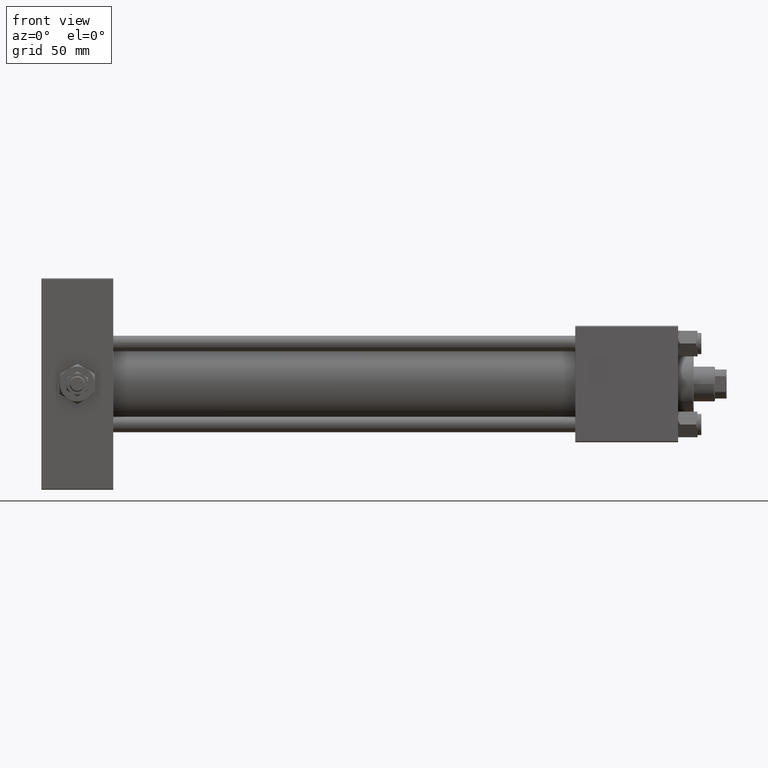
[diagram: clean part render]
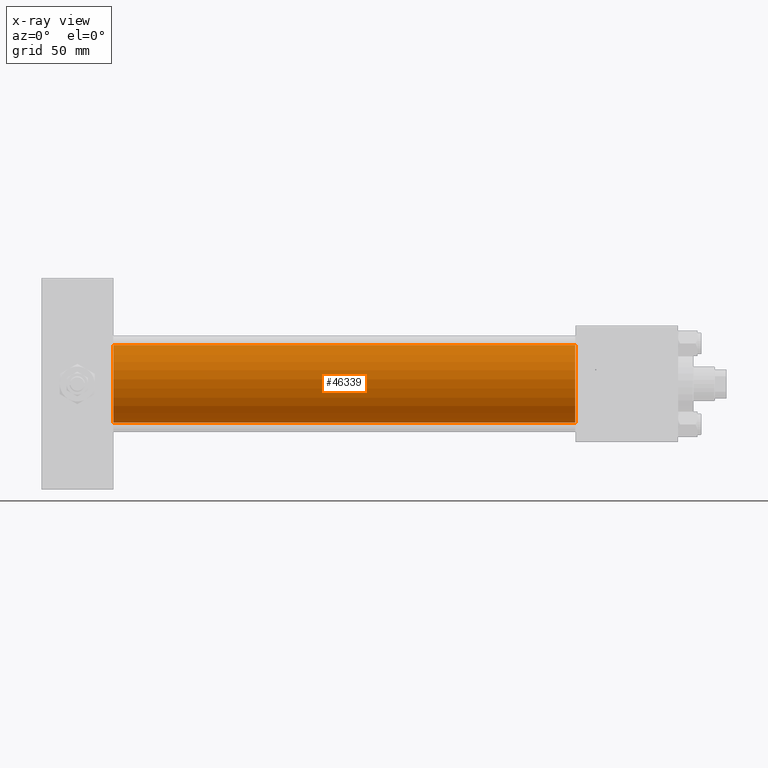
[diagram: x-ray — body ghosted, one internal face saturated and labeled with its STEP entity id]
A machine part, front view, then the same camera in x-ray: the body is ghosted and one INTERNAL B-rep face — a face not visible from any outside direction — is saturated and labeled: STEP entity #46339.
In plain terms, the highlighted cylindrical surface (partial cylindrical patch) has radius 20 mm, axis along (-1, -0, -0).
Its self-contained STEP definition (entity closure, byte-faithful):
#6303 = CARTESIAN_POINT ( 'NONE',  ( 274.9999999999999432, -2.602085213965210642E-15, 0.000000000000000000 ) ) ;
#6581 = DIRECTION ( 'NONE',  ( -1.000000000000000000, -0.000000000000000000, -0.000000000000000000 ) ) ;
#7048 = DIRECTION ( 'NONE',  ( 0.000000000000000000, 0.000000000000000000, -1.000000000000000000 ) ) ;
#11314 = AXIS2_PLACEMENT_3D ( 'NONE', #51269, #42913, #7048 ) ;
#11513 = VERTEX_POINT ( 'NONE', #28851 ) ;
#14924 = VERTEX_POINT ( 'NONE', #17697 ) ;
#15507 = AXIS2_PLACEMENT_3D ( 'NONE', #28723, #31889, #24548 ) ;
#15607 = EDGE_CURVE ( 'NONE', #14924, #32264, #33076, .T. ) ;
#15645 = EDGE_LOOP ( 'NONE', ( #50236, #17082, #39259, #16902 ) ) ;
#16421 = EDGE_CURVE ( 'NONE', #25522, #11513, #33897, .T. ) ;
#16627 = VECTOR ( 'NONE', #23843, 1000.000000000000000 ) ;
#16902 = ORIENTED_EDGE ( 'NONE', *, *, #31165, .F. ) ;
#17082 = ORIENTED_EDGE ( 'NONE', *, *, #27959, .T. ) ;
#17697 = CARTESIAN_POINT ( 'NONE',  ( 37.00000000000000000, -2.602085213965210642E-15, 20.00000000000000000 ) ) ;
#20169 = CARTESIAN_POINT ( 'NONE',  ( 274.9999999999999432, -1.527916156705042519E-16, -20.00000000000000000 ) ) ;
#20972 = CARTESIAN_POINT ( 'NONE',  ( 37.00000000000000000, -1.527916156705042519E-16, -20.00000000000000000 ) ) ;
#21236 = VECTOR ( 'NONE', #49258, 1000.000000000000000 ) ;
#22279 = DIRECTION ( 'NONE',  ( 0.000000000000000000, 0.000000000000000000, 1.000000000000000000 ) ) ;
#23843 = DIRECTION ( 'NONE',  ( -1.000000000000000000, -0.000000000000000000, -0.000000000000000000 ) ) ;
#24548 = DIRECTION ( 'NONE',  ( 0.000000000000000000, 0.000000000000000000, -1.000000000000000000 ) ) ;
#25522 = VERTEX_POINT ( 'NONE', #39306 ) ;
#27510 = AXIS2_PLACEMENT_3D ( 'NONE', #6303, #6581, #22279 ) ;
#27959 = EDGE_CURVE ( 'NONE', #11513, #32264, #40589, .T. ) ;
#28723 = CARTESIAN_POINT ( 'NONE',  ( 37.00000000000000000, -2.602085213965210642E-15, 0.000000000000000000 ) ) ;
#28846 = CARTESIAN_POINT ( 'NONE',  ( 274.9999999999999432, -2.602085213965210642E-15, 20.00000000000000000 ) ) ;
#28851 = CARTESIAN_POINT ( 'NONE',  ( 274.9999999999999432, -1.527916156705042519E-16, -20.00000000000000000 ) ) ;
#31165 = EDGE_CURVE ( 'NONE', #25522, #14924, #44558, .T. ) ;
#31889 = DIRECTION ( 'NONE',  ( 1.000000000000000000, 0.000000000000000000, 0.000000000000000000 ) ) ;
#32264 = VERTEX_POINT ( 'NONE', #20972 ) ;
#33076 = CIRCLE ( 'NONE', #15507, 20.00000000000000000 ) ;
#33897 = CIRCLE ( 'NONE', #11314, 20.00000000000000000 ) ;
#39259 = ORIENTED_EDGE ( 'NONE', *, *, #15607, .F. ) ;
#39306 = CARTESIAN_POINT ( 'NONE',  ( 274.9999999999999432, -2.602085213965210642E-15, 20.00000000000000000 ) ) ;
#40589 = LINE ( 'NONE', #20169, #16627 ) ;
#42438 = FACE_OUTER_BOUND ( 'NONE', #15645, .T. ) ;
#42913 = DIRECTION ( 'NONE',  ( 1.000000000000000000, 0.000000000000000000, 0.000000000000000000 ) ) ;
#44558 = LINE ( 'NONE', #28846, #21236 ) ;
#46339 = ADVANCED_FACE ( 'NONE', ( #42438 ), #46362, .F. ) ;
#46362 = CYLINDRICAL_SURFACE ( 'NONE', #27510, 20.00000000000000000 ) ;
#49258 = DIRECTION ( 'NONE',  ( -1.000000000000000000, -0.000000000000000000, -0.000000000000000000 ) ) ;
#50236 = ORIENTED_EDGE ( 'NONE', *, *, #16421, .T. ) ;
#51269 = CARTESIAN_POINT ( 'NONE',  ( 274.9999999999999432, -2.602085213965210642E-15, 0.000000000000000000 ) ) ;